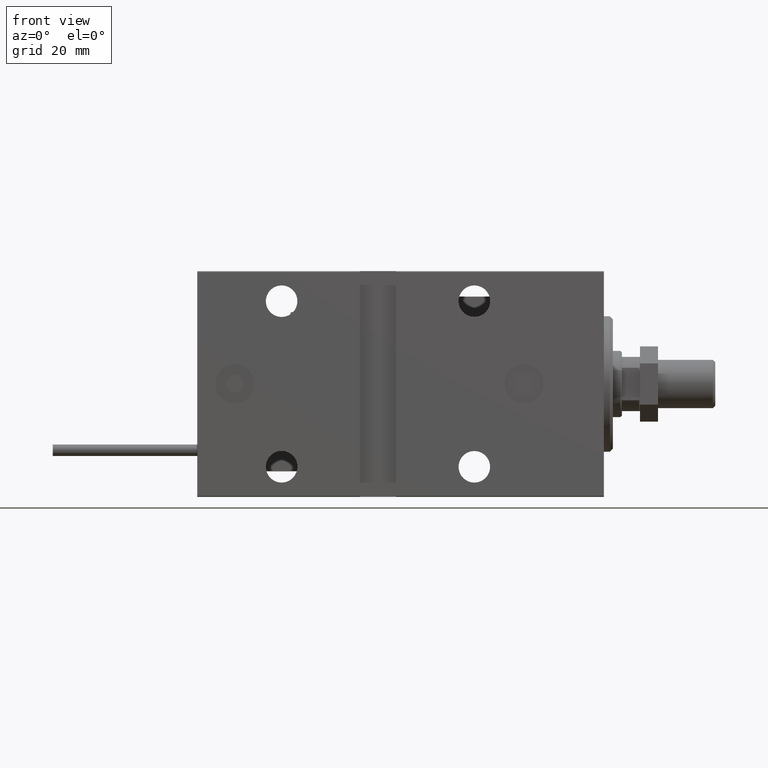
[diagram: clean part render]
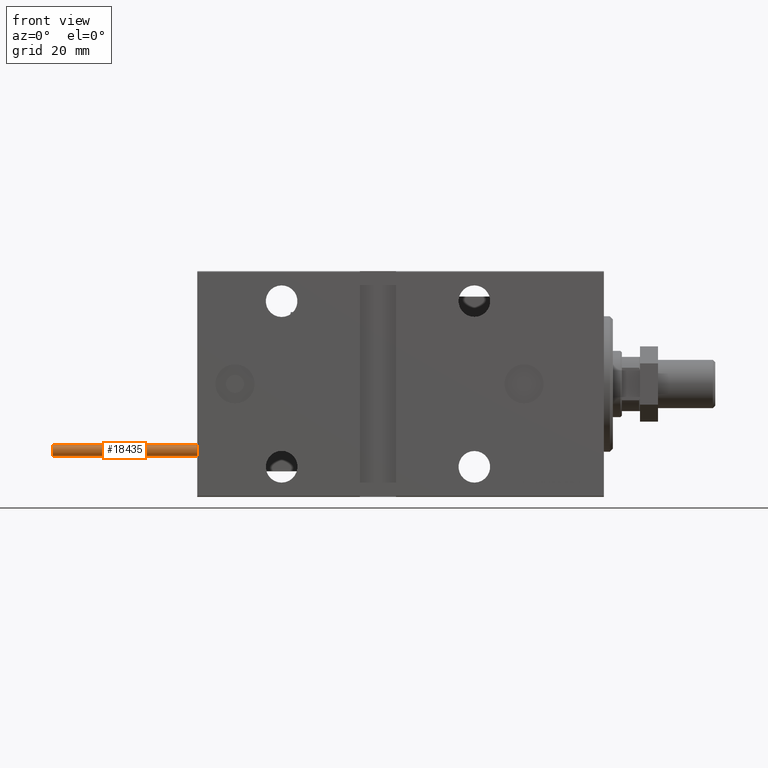
[diagram: same view with one face highlighted and labeled with its STEP entity id]
A machine part, front view. The second image highlights one B-rep face of the part: STEP entity #18435.
In plain terms, the highlighted cylindrical surface (edge-blend (fillet) strip) has radius 1.9 mm, axis along (1, -0, 0).
Its self-contained STEP definition (entity closure, byte-faithful):
#2677 = CIRCLE ( 'NONE', #18076, 1.899999999999999467 ) ;
#4513 = EDGE_CURVE ( 'NONE', #43186, #36279, #9993, .T. ) ;
#7858 = AXIS2_PLACEMENT_3D ( 'NONE', #33105, #13784, #29293 ) ;
#9993 = LINE ( 'NONE', #40973, #13911 ) ;
#10376 = VERTEX_POINT ( 'NONE', #40491 ) ;
#13784 = DIRECTION ( 'NONE',  ( 0.000000000000000000, 0.000000000000000000, 1.000000000000000000 ) ) ;
#13911 = VECTOR ( 'NONE', #17372, 1000.000000000000000 ) ;
#15447 = DIRECTION ( 'NONE',  ( 0.000000000000000000, 0.000000000000000000, 1.000000000000000000 ) ) ;
#17372 = DIRECTION ( 'NONE',  ( -0.000000000000000000, -0.000000000000000000, -1.000000000000000000 ) ) ;
#18076 = AXIS2_PLACEMENT_3D ( 'NONE', #45682, #15447, #38057 ) ;
#18138 = CARTESIAN_POINT ( 'NONE',  ( -1.899999999999999467, 0.000000000000000000, 48.00000000000000000 ) ) ;
#18412 = ORIENTED_EDGE ( 'NONE', *, *, #4513, .F. ) ;
#18435 = ADVANCED_FACE ( 'NONE', ( #31659 ), #47138, .T. ) ;
#19710 = VECTOR ( 'NONE', #30074, 1000.000000000000000 ) ;
#21578 = EDGE_CURVE ( 'NONE', #46040, #36279, #2677, .T. ) ;
#22768 = EDGE_LOOP ( 'NONE', ( #18412, #45418, #46048, #47669 ) ) ;
#23135 = EDGE_CURVE ( 'NONE', #10376, #46040, #36956, .T. ) ;
#25576 = CARTESIAN_POINT ( 'NONE',  ( 1.899999999999999467, 2.326828918379970872E-16, 0.000000000000000000 ) ) ;
#28358 = DIRECTION ( 'NONE',  ( -0.000000000000000000, -0.000000000000000000, -1.000000000000000000 ) ) ;
#29293 = DIRECTION ( 'NONE',  ( 1.000000000000000000, 0.000000000000000000, 0.000000000000000000 ) ) ;
#30074 = DIRECTION ( 'NONE',  ( -0.000000000000000000, -0.000000000000000000, -1.000000000000000000 ) ) ;
#31496 = EDGE_CURVE ( 'NONE', #10376, #43186, #45152, .T. ) ;
#31659 = FACE_OUTER_BOUND ( 'NONE', #22768, .T. ) ;
#32188 = CARTESIAN_POINT ( 'NONE',  ( 1.899999999999999467, 2.326828918379970872E-16, 48.00000000000000000 ) ) ;
#33105 = CARTESIAN_POINT ( 'NONE',  ( 0.000000000000000000, 0.000000000000000000, 48.00000000000000000 ) ) ;
#34965 = DIRECTION ( 'NONE',  ( -1.000000000000000000, 0.000000000000000000, 0.000000000000000000 ) ) ;
#36279 = VERTEX_POINT ( 'NONE', #25576 ) ;
#36956 = LINE ( 'NONE', #18138, #19710 ) ;
#37036 = CARTESIAN_POINT ( 'NONE',  ( -1.899999999999999467, 0.000000000000000000, 0.000000000000000000 ) ) ;
#38057 = DIRECTION ( 'NONE',  ( 1.000000000000000000, 0.000000000000000000, 0.000000000000000000 ) ) ;
#38767 = CARTESIAN_POINT ( 'NONE',  ( 0.000000000000000000, 0.000000000000000000, 48.00000000000000000 ) ) ;
#40491 = CARTESIAN_POINT ( 'NONE',  ( -1.899999999999999467, 0.000000000000000000, 48.00000000000000000 ) ) ;
#40973 = CARTESIAN_POINT ( 'NONE',  ( 1.899999999999999467, 2.326828918379970872E-16, 48.00000000000000000 ) ) ;
#43186 = VERTEX_POINT ( 'NONE', #32188 ) ;
#43203 = AXIS2_PLACEMENT_3D ( 'NONE', #38767, #28358, #34965 ) ;
#45152 = CIRCLE ( 'NONE', #7858, 1.899999999999999467 ) ;
#45418 = ORIENTED_EDGE ( 'NONE', *, *, #31496, .F. ) ;
#45682 = CARTESIAN_POINT ( 'NONE',  ( 0.000000000000000000, 0.000000000000000000, 0.000000000000000000 ) ) ;
#46040 = VERTEX_POINT ( 'NONE', #37036 ) ;
#46048 = ORIENTED_EDGE ( 'NONE', *, *, #23135, .T. ) ;
#47138 = CYLINDRICAL_SURFACE ( 'NONE', #43203, 1.899999999999999467 ) ;
#47669 = ORIENTED_EDGE ( 'NONE', *, *, #21578, .T. ) ;